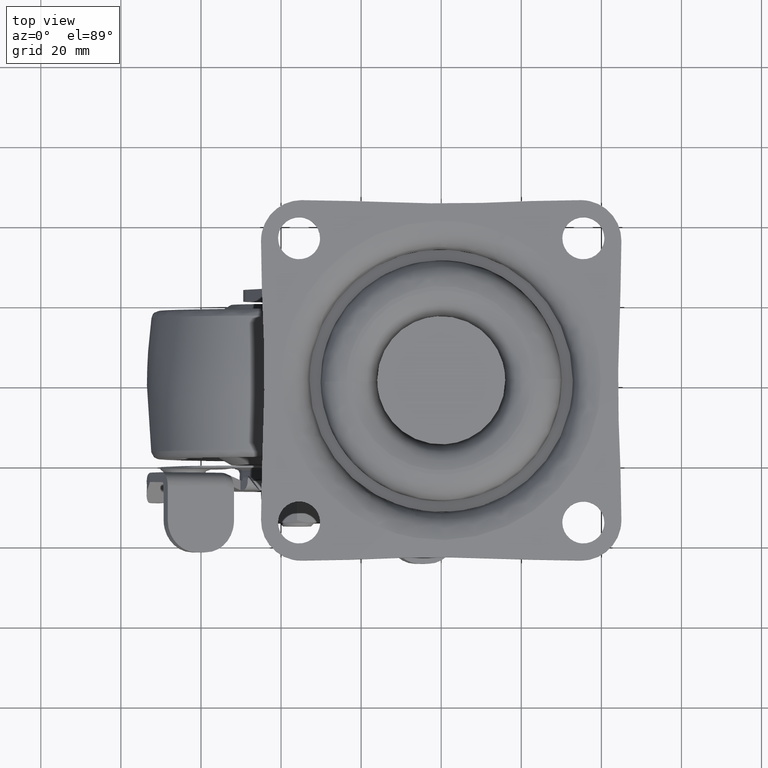
[diagram: clean part render]
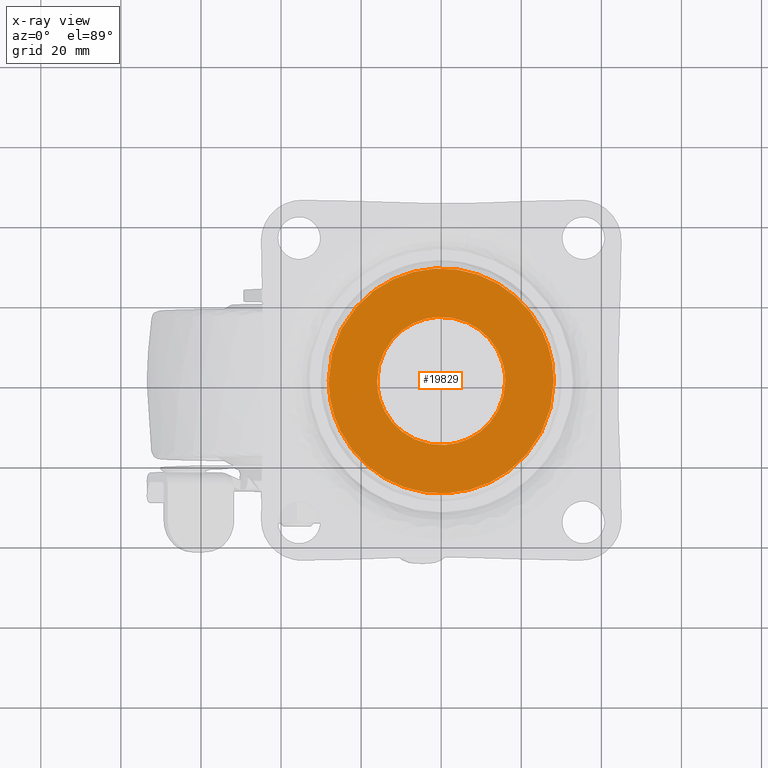
[diagram: x-ray — body ghosted, one internal face saturated and labeled with its STEP entity id]
A machine part, top view, then the same camera in x-ray: the body is ghosted and one INTERNAL B-rep face — a face not visible from any outside direction — is saturated and labeled: STEP entity #19829.
In plain terms, the highlighted face is a freeform B-spline surface patch.
Its self-contained STEP definition (entity closure, byte-faithful):
#19520=CARTESIAN_POINT('',(0.976767391218939,-15.970157339969001,-10.517287000000000));
#19521=VERTEX_POINT('',#19520);
#19527=CARTESIAN_POINT('',(16.0,0.0,-10.517287000000000));
#19528=VERTEX_POINT('',#19527);
#19529=CARTESIAN_POINT('',(16.0,0.0,-10.517287000000000));
#19530=CARTESIAN_POINT('',(15.999999999999925,-15.051305796396088,-10.517287000000001));
#19531=CARTESIAN_POINT('',(0.976767391218939,-15.970157339968999,-10.517287000000000));
#19539=(BOUNDED_CURVE()B_SPLINE_CURVE(2,(#19529,#19530,#19531),.UNSPECIFIED.,.F.,.U.)B_SPLINE_CURVE_WITH_KNOTS((3,3),(0.500000000000000,0.739333062088418),.UNSPECIFIED.)CURVE()GEOMETRIC_REPRESENTATION_ITEM()RATIONAL_B_SPLINE_CURVE((1.0,0.719603876305773,0.976072255663244))REPRESENTATION_ITEM(''));
#19540=EDGE_CURVE('',#19528,#19521,#19539,.T.);
#19542=CARTESIAN_POINT('',(-0.976767391218939,15.970157339969001,-10.517287000000000));
#19543=VERTEX_POINT('',#19542);
#19544=CARTESIAN_POINT('',(-0.976767391218939,15.970157339968999,-10.517287000000000));
#19545=CARTESIAN_POINT('',(-0.488839579152173,15.999999999997359,-10.517286999999996));
#19546=CARTESIAN_POINT('',(1.576102E-013,15.999999999997410,-10.517287000000000));
#19547=CARTESIAN_POINT('',(16.000000000000068,15.999999999998739,-10.517287000000000));
#19548=CARTESIAN_POINT('',(16.0,0.0,-10.517287000000000));
#19556=(BOUNDED_CURVE()B_SPLINE_CURVE(2,(#19544,#19545,#19546,#19547,#19548),.UNSPECIFIED.,.F.,.U.)B_SPLINE_CURVE_WITH_KNOTS((3,2,3),(0.239333062088418,0.250000000000000,0.500000000000000),.UNSPECIFIED.)CURVE()GEOMETRIC_REPRESENTATION_ITEM()RATIONAL_B_SPLINE_CURVE((0.976072255663244,0.987502904880774,1.0,0.707106781186548,1.0))REPRESENTATION_ITEM(''));
#19557=EDGE_CURVE('',#19543,#19528,#19556,.T.);
#19601=CARTESIAN_POINT('',(-16.0,0.0,-10.517287000000000));
#19602=VERTEX_POINT('',#19601);
#19603=CARTESIAN_POINT('',(-16.0,0.0,-10.517287000000000));
#19604=CARTESIAN_POINT('',(-15.999999999999925,15.051305796396088,-10.517287000000001));
#19605=CARTESIAN_POINT('',(-0.976767391218939,15.970157339968999,-10.517287000000000));
#19613=(BOUNDED_CURVE()B_SPLINE_CURVE(2,(#19603,#19604,#19605),.UNSPECIFIED.,.F.,.U.)B_SPLINE_CURVE_WITH_KNOTS((3,3),(0.0,0.239333062088418),.UNSPECIFIED.)CURVE()GEOMETRIC_REPRESENTATION_ITEM()RATIONAL_B_SPLINE_CURVE((1.0,0.719603876305773,0.976072255663244))REPRESENTATION_ITEM(''));
#19614=EDGE_CURVE('',#19602,#19543,#19613,.T.);
#19616=CARTESIAN_POINT('',(0.976767391218939,-15.970157339968999,-10.517287000000000));
#19617=CARTESIAN_POINT('',(0.488839579152174,-15.999999999997359,-10.517286999999996));
#19618=CARTESIAN_POINT('',(-1.559943E-013,-15.999999999997410,-10.517287000000000));
#19619=CARTESIAN_POINT('',(-16.000000000000068,-15.999999999998739,-10.517287000000000));
#19620=CARTESIAN_POINT('',(-16.0,0.0,-10.517287000000000));
#19628=(BOUNDED_CURVE()B_SPLINE_CURVE(2,(#19616,#19617,#19618,#19619,#19620),.UNSPECIFIED.,.F.,.U.)B_SPLINE_CURVE_WITH_KNOTS((3,2,3),(0.739333062088418,0.750000000000000,1.0),.UNSPECIFIED.)CURVE()GEOMETRIC_REPRESENTATION_ITEM()RATIONAL_B_SPLINE_CURVE((0.976072255663244,0.987502904880774,1.0,0.707106781186548,1.0))REPRESENTATION_ITEM(''));
#19629=EDGE_CURVE('',#19521,#19602,#19628,.T.);
#19728=CARTESIAN_POINT('',(30.914342720104528,-30.909559684166219,-10.517287000000000));
#19729=CARTESIAN_POINT('',(-30.914344227854890,-30.909559684166219,-10.517287000000000));
#19730=CARTESIAN_POINT('',(30.914342720104528,30.909559684166229,-10.517287000000000));
#19731=CARTESIAN_POINT('',(-30.914344227854890,30.909559684166229,-10.517287000000000));
#19732=B_SPLINE_SURFACE_WITH_KNOTS('',1,1,((#19728,#19730),(#19729,#19731)),.UNSPECIFIED.,.F.,.F.,.U.,(2,2),(2,2),(0.0,61.828686947959419),(0.0,61.819119368332437),.UNSPECIFIED.);
#19733=CARTESIAN_POINT('',(-27.732291611910370,-4.571161998063750,-10.517287000090610));
#19734=VERTEX_POINT('',#19733);
#19735=CARTESIAN_POINT('',(-28.106503163065991,0.0,-10.517286999999961));
#19736=VERTEX_POINT('',#19735);
#19737=CARTESIAN_POINT('',(-27.732291611910366,-4.571161998063750,-10.517287000090613));
#19738=CARTESIAN_POINT('',(-28.106503163111086,-2.300898142150579,-10.517287000045282));
#19739=CARTESIAN_POINT('',(-28.106503163065991,0.0,-10.517286999999961));
#19747=(BOUNDED_CURVE()B_SPLINE_CURVE(2,(#19737,#19738,#19739),.UNSPECIFIED.,.F.,.U.)B_SPLINE_CURVE_WITH_KNOTS((3,3),(0.972006108799088,1.0),.UNSPECIFIED.)CURVE()GEOMETRIC_REPRESENTATION_ITEM()RATIONAL_B_SPLINE_CURVE((0.941751131923079,0.967203116396205,1.0))REPRESENTATION_ITEM(''));
#19748=EDGE_CURVE('',#19734,#19736,#19747,.T.);
#19749=ORIENTED_EDGE('',*,*,#19748,.F.);
#19750=CARTESIAN_POINT('',(28.106503163065948,0.0,-10.517287000000000));
#19751=VERTEX_POINT('',#19750);
#19752=CARTESIAN_POINT('',(28.106503163065948,0.0,-10.517287000000000));
#19753=CARTESIAN_POINT('',(28.106652878650092,-1.689410103470927,-10.517287000000250));
#19754=CARTESIAN_POINT('',(27.865009634015170,-4.359691012820732,-10.517287000000890));
#19755=CARTESIAN_POINT('',(27.047014059204749,-7.811268420211837,-10.517287000002790));
#19756=CARTESIAN_POINT('',(26.034779957977310,-10.751619007111460,-10.517287000004730));
#19757=CARTESIAN_POINT('',(24.553640142364159,-13.857553123299519,-10.517287000007640));
#19758=CARTESIAN_POINT('',(22.182463842041191,-17.463620636494088,-10.517287000011761));
#19759=CARTESIAN_POINT('',(19.363675148838588,-20.522672162791810,-10.517287000017051));
#19760=CARTESIAN_POINT('',(15.783622035966109,-23.388129591810870,-10.517287000022860));
#19761=CARTESIAN_POINT('',(11.944593255751570,-25.605555875322960,-10.517287000029450));
#19762=CARTESIAN_POINT('',(7.777595705604967,-27.109248249606551,-10.517287000036349));
#19763=CARTESIAN_POINT('',(3.768151325153501,-27.937968639807991,-10.517287000042920));
#19764=CARTESIAN_POINT('',(0.060895708216136,-28.198122426774152,-10.517287000048929));
#19765=CARTESIAN_POINT('',(-4.024855671606927,-27.913456409495520,-10.517287000055500));
#19766=CARTESIAN_POINT('',(-7.605361833439639,-27.142549907856282,-10.517287000061041));
#19767=CARTESIAN_POINT('',(-11.254364754116940,-25.839644142882520,-10.517287000067199));
#19768=CARTESIAN_POINT('',(-14.517561733898930,-24.178293126063711,-10.517287000070910));
#19769=CARTESIAN_POINT('',(-17.599152407827930,-22.008679981849561,-10.517287000076969));
#19770=CARTESIAN_POINT('',(-20.021201072158402,-19.803753211677229,-10.517287000080170));
#19771=CARTESIAN_POINT('',(-22.263821482007099,-17.270935572015240,-10.517287000083471));
#19772=CARTESIAN_POINT('',(-24.121838164121311,-14.569794885500540,-10.517287000086119));
#19773=CARTESIAN_POINT('',(-25.676623264532498,-11.564704237387430,-10.517287000088130));
#19774=CARTESIAN_POINT('',(-26.919628556156120,-8.358676878262140,-10.517287000090359));
#19775=CARTESIAN_POINT('',(-27.501930028086999,-5.969224772458779,-10.517287000089260));
#19776=CARTESIAN_POINT('',(-27.732291611910370,-4.571161998063750,-10.517287000090610));
#19777=B_SPLINE_CURVE_WITH_KNOTS('',3,(#19752,#19753,#19754,#19755,#19756,#19757,#19758,#19759,#19760,#19761,#19762,#19763,#19764,#19765,#19766,#19767,#19768,#19769,#19770,#19771,#19772,#19773,#19774,#19775,#19776),.UNSPECIFIED.,.F.,.U.,(4,1,1,1,1,1,1,1,1,1,1,1,1,1,1,1,1,1,1,1,1,1,4),(0.000000107503354,5.068202014557784,8.011039864885262,10.626958265941470,14.387239731181889,18.311061794229861,23.542819642771310,26.812660479347670,32.044428389421938,36.785702187455001,40.055499581682298,44.306220234806680,47.903040241288529,52.317302384598356,55.260156449210633,59.510978594335157,63.271285576581398,66.541122828475736,69.320481406739603,73.407799221204456,76.350627104154867,79.457010013336884,83.707744306390808),.UNSPECIFIED.);
#19778=EDGE_CURVE('',#19751,#19734,#19777,.T.);
#19779=ORIENTED_EDGE('',*,*,#19778,.F.);
#19780=CARTESIAN_POINT('',(27.732291611910370,4.571161998063748,-10.517287000090610));
#19781=VERTEX_POINT('',#19780);
#19782=CARTESIAN_POINT('',(27.732291611910366,4.571161998063748,-10.517287000090612));
#19783=CARTESIAN_POINT('',(28.106503163111068,2.300898142150578,-10.517287000045306));
#19784=CARTESIAN_POINT('',(28.106503163065948,0.0,-10.517287000000000));
#19792=(BOUNDED_CURVE()B_SPLINE_CURVE(2,(#19782,#19783,#19784),.UNSPECIFIED.,.F.,.U.)B_SPLINE_CURVE_WITH_KNOTS((3,3),(0.472006108799088,0.500000000000000),.UNSPECIFIED.)CURVE()GEOMETRIC_REPRESENTATION_ITEM()RATIONAL_B_SPLINE_CURVE((0.941751131923079,0.967203116396205,1.0))REPRESENTATION_ITEM(''));
#19793=EDGE_CURVE('',#19781,#19751,#19792,.T.);
#19794=ORIENTED_EDGE('',*,*,#19793,.F.);
#19795=CARTESIAN_POINT('',(-28.106503163065991,0.0,-10.517286999999961));
#19796=CARTESIAN_POINT('',(-28.106574249223410,1.471396273910255,-10.517287000000151));
#19797=CARTESIAN_POINT('',(-27.853540433069121,4.686726834223597,-10.517287000001000));
#19798=CARTESIAN_POINT('',(-26.688523732517279,9.247350327804394,-10.517287000003421));
#19799=CARTESIAN_POINT('',(-24.853481664239670,13.337141288538470,-10.517287000007030));
#19800=CARTESIAN_POINT('',(-22.564775502541920,16.930480134044970,-10.517287000011081));
#19801=CARTESIAN_POINT('',(-19.982318375346161,19.901919301720639,-10.517287000015701));
#19802=CARTESIAN_POINT('',(-17.090865309958801,22.401269664938582,-10.517287000020641));
#19803=CARTESIAN_POINT('',(-14.279242668025340,24.286477124593880,-10.517287000025480));
#19804=CARTESIAN_POINT('',(-11.020668718581771,25.947520781519099,-10.517287000030930));
#19805=CARTESIAN_POINT('',(-6.998431258098274,27.359760870040340,-10.517287000037619));
#19806=CARTESIAN_POINT('',(-2.574205635958100,28.114302352970022,-10.517287000044851));
#19807=CARTESIAN_POINT('',(2.287791642936241,28.143768684065542,-10.517287000052610));
#19808=CARTESIAN_POINT('',(6.990299889512937,27.386370116160350,-10.517287000060421));
#19809=CARTESIAN_POINT('',(11.266370232466141,25.859389046519841,-10.517287000066441));
#19810=CARTESIAN_POINT('',(14.496240038685279,24.143223870059821,-10.517287000072510));
#19811=CARTESIAN_POINT('',(17.341175921203110,22.213731055465960,-10.517287000075710));
#19812=CARTESIAN_POINT('',(19.804210846743661,20.048910394774399,-10.517287000080101));
#19813=CARTESIAN_POINT('',(22.046738374589321,17.516019209403989,-10.517287000083050));
#19814=CARTESIAN_POINT('',(24.139872095437571,14.584197712556060,-10.517287000086240));
#19815=CARTESIAN_POINT('',(26.352206809379791,10.308641368986089,-10.517287000088890));
#19816=CARTESIAN_POINT('',(27.387017217412311,6.668327370547845,-10.517287000090800));
#19817=CARTESIAN_POINT('',(27.732291611910370,4.571161998063748,-10.517287000090610));
#19818=B_SPLINE_CURVE_WITH_KNOTS('',3,(#19795,#19796,#19797,#19798,#19799,#19800,#19801,#19802,#19803,#19804,#19805,#19806,#19807,#19808,#19809,#19810,#19811,#19812,#19813,#19814,#19815,#19816,#19817),.UNSPECIFIED.,.F.,.U.,(4,1,1,1,1,1,1,1,1,1,1,1,1,1,1,1,1,1,1,1,4),(0.000000107536508,4.414193764100304,9.646010847522632,14.060285654892891,17.820583760620782,22.398370800566781,25.831707383801589,29.265037287017190,32.534906374736053,36.785702187467912,42.017383276381658,45.941124798537871,51.336389644747328,56.241143000674107,59.510978594342767,62.290322866560572,66.541122828481392,69.320481406743696,72.426823929045710,77.331612319686769,83.707744306390779),.UNSPECIFIED.);
#19819=EDGE_CURVE('',#19736,#19781,#19818,.T.);
#19820=ORIENTED_EDGE('',*,*,#19819,.F.);
#19821=EDGE_LOOP('',(#19749,#19779,#19794,#19820));
#19822=FACE_OUTER_BOUND('',#19821,.T.);
#19823=ORIENTED_EDGE('',*,*,#19540,.T.);
#19824=ORIENTED_EDGE('',*,*,#19629,.T.);
#19825=ORIENTED_EDGE('',*,*,#19614,.T.);
#19826=ORIENTED_EDGE('',*,*,#19557,.T.);
#19827=EDGE_LOOP('',(#19823,#19824,#19825,#19826));
#19828=FACE_BOUND('',#19827,.T.);
#19829=ADVANCED_FACE('',(#19822,#19828),#19732,.F.);